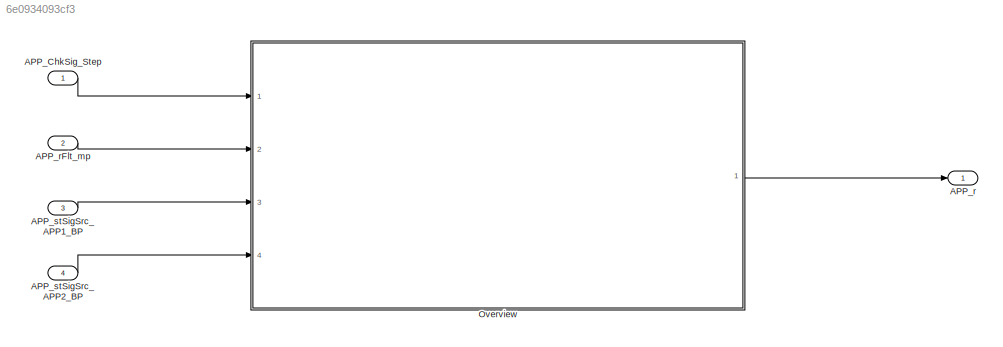
MODEL slx_6e0934093cf3
KIND model
CONFIG AbsTol = auto
CONFIG EnableMultiTasking = off
CONFIG FixedStep = 0.001
CONFIG MaxStep = auto
CONFIG MinStep = auto
CONFIG RelTol = 1e-3
CONFIG SampleTimeConstraint = Unconstrained
CONFIG SolverName = FixedStepDiscrete
CONFIG StartTime = 0.0
CONFIG StopTime = Inf
WORKSPACE source: mxarray member
WORKSPACE APP_ChkSig_DT = 10
BLOCK [Inport] APP_ChkSig_Step
  OutputFunctionCall = on
BLOCK [Outport] APP_r
  Description = Acceleration pedal sensor 1 value after fault handling
  OutDataTypeStr = Percent
  OutMax = 100
  OutMin = 0
  PortDimensions = [1 1]
  Unit = %
  VectorParamsAs1DForOutWhenUnconnected = off
BLOCK [Inport] APP_rFlt_mp
  Description = Acceleration pedal position filtered value
  OutDataTypeStr = Percent
  OutMax = 100
  OutMin = 0
  Port = 2
  PortDimensions = [1 1]
  Unit = %
BLOCK [Inport] APP_stSigSrc_APP1_BP
  Description = Sensor 1 is the reference variable, Sensor 2 value is defective
  OutDataTypeStr = boolean
  OutMax = 1
  OutMin = 0
  Port = 3
  PortDimensions = [1 1]
BLOCK [Inport] APP_stSigSrc_APP2_BP
  Description = Sensor 2 is the reference variable,Sensor1 value is defective
  OutDataTypeStr = boolean
  OutMax = 1
  OutMin = 0
  Port = 4
  PortDimensions = [1 1]
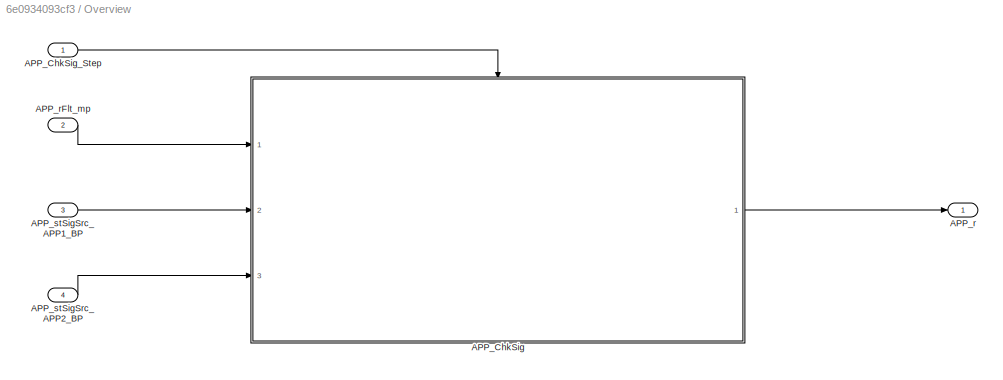
BLOCK [SubSystem] Overview
  Ports = [4, 1]
  RequestExecContextInheritance = off
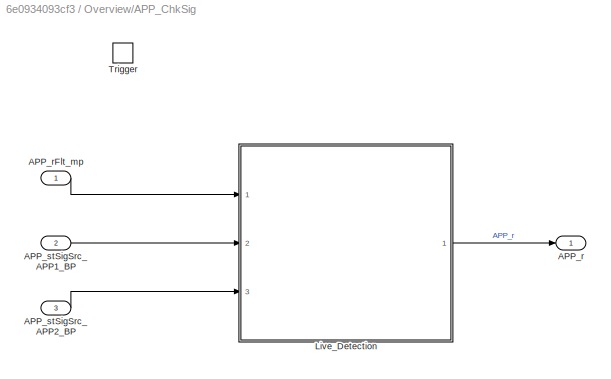
BLOCK [SubSystem] Overview/APP_ChkSig
  Ports = [3, 1, 0, 1]
  RequestExecContextInheritance = off
BLOCK [Outport] Overview/APP_ChkSig/APP_r
  Tag = %
  VectorParamsAs1DForOutWhenUnconnected = off
BLOCK [Inport] Overview/APP_ChkSig/APP_rFlt_mp
  Tag = %
BLOCK [Inport] Overview/APP_ChkSig/APP_stSigSrc_APP1_BP
  Port = 2
BLOCK [Inport] Overview/APP_ChkSig/APP_stSigSrc_APP2_BP
  Port = 3
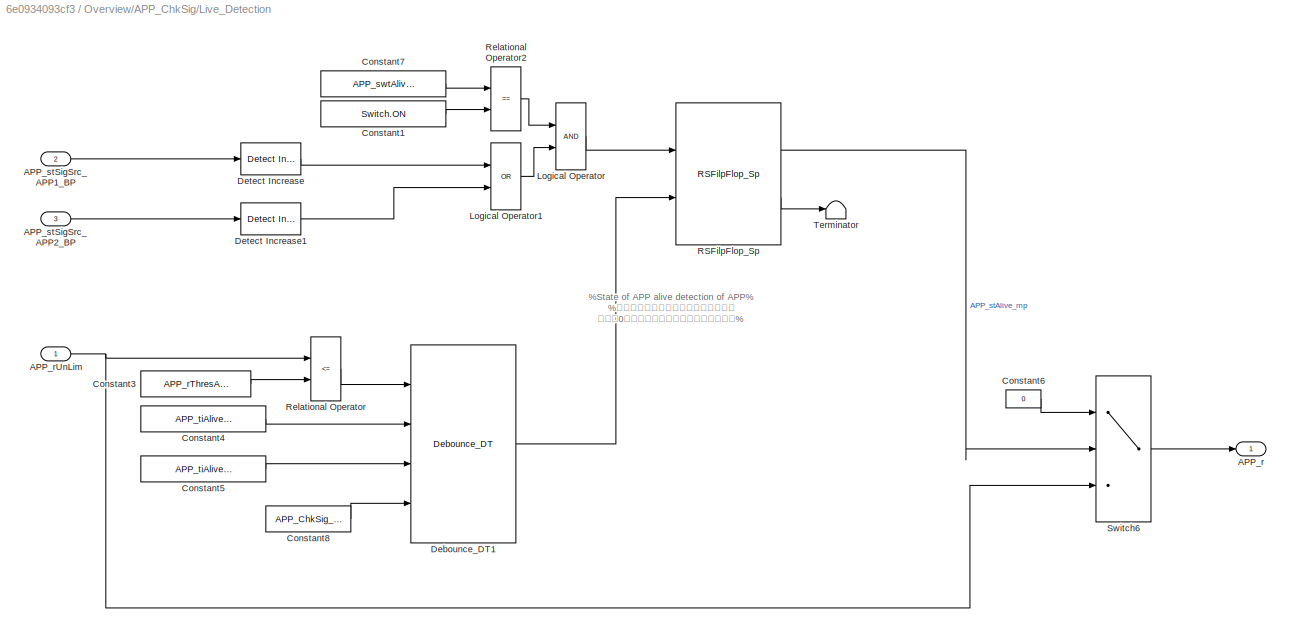
BLOCK [SubSystem] Overview/APP_ChkSig/Live_Detection
  Ports = [3, 1]
  RequestExecContextInheritance = off
BLOCK [Outport] Overview/APP_ChkSig/Live_Detection/APP_r
  VectorParamsAs1DForOutWhenUnconnected = off
BLOCK [Inport] Overview/APP_ChkSig/Live_Detection/APP_rUnLim
BLOCK [Inport] Overview/APP_ChkSig/Live_Detection/APP_stSigSrc_APP1_BP
  Port = 2
BLOCK [Inport] Overview/APP_ChkSig/Live_Detection/APP_stSigSrc_APP2_BP
  Port = 3
BLOCK [Constant] Overview/APP_ChkSig/Live_Detection/Constant1
  OutDataTypeStr = Inherit: Inherit via back propagation
  Value = Switch.ON
BLOCK [Constant] Overview/APP_ChkSig/Live_Detection/Constant3
  Value = APP_rThresAliveDet_C
BLOCK [Constant] Overview/APP_ChkSig/Live_Detection/Constant4
  Value = APP_tiAliveDebLoHi_C
BLOCK [Constant] Overview/APP_ChkSig/Live_Detection/Constant5
  Value = APP_tiAliveDebHiLo_C
BLOCK [Constant] Overview/APP_ChkSig/Live_Detection/Constant6
  OutDataTypeStr = Inherit: Inherit via back propagation
  Value = 0
BLOCK [Constant] Overview/APP_ChkSig/Live_Detection/Constant7
  Value = APP_swtAliveDetEna_C
BLOCK [Constant] Overview/APP_ChkSig/Live_Detection/Constant8
  OutDataTypeStr = Inherit: Inherit via back propagation
  Value = APP_ChkSig_DT
BLOCK [Reference] Overview/APP_ChkSig/Live_Detection/Debounce_DT1  REF=sllib/Timer and counter operators/Debounce_DT  (lib defined in slx_2b0aa6d284ff)
  Ports = [4, 1]
  SourceBlock = sllib/Timer and counter operators/Debounce_DT
  SourceProductName = sllib
  SourceType = Debounce_DT
BLOCK [Reference] Overview/APP_ChkSig/Live_Detection/Detect Increase  REF=simulink/Logic and Bit
Operations/Detect
Increase
  Ports = [1, 1]
  SourceBlock = simulink/Logic and Bit\nOperations/Detect\nIncrease
  SourceProductBaseCode = SL
  SourceType = Detect Increase
BLOCK [Reference] Overview/APP_ChkSig/Live_Detection/Detect Increase1  REF=simulink/Logic and Bit
Operations/Detect
Increase
  Ports = [1, 1]
  SourceBlock = simulink/Logic and Bit\nOperations/Detect\nIncrease
  SourceProductBaseCode = SL
  SourceType = Detect Increase
BLOCK [Logic] Overview/APP_ChkSig/Live_Detection/Logical Operator
  OutDataTypeStr = boolean
  Ports = [2, 1]
BLOCK [Logic] Overview/APP_ChkSig/Live_Detection/Logical Operator1
  Operator = OR
  OutDataTypeStr = boolean
  Ports = [2, 1]
BLOCK [Reference] Overview/APP_ChkSig/Live_Detection/RSFilpFlop_Sp  REF=sllib/Logical symbols/RSFilpFlop_Sp  (lib defined in slx_2b0aa6d284ff)
  AttributesFormatString = State Initial=%<InitialCondition>
  Ports = [2, 2]
  SourceBlock = sllib/Logical symbols/RSFilpFlop_Sp
  SourceProductName = sllib
  SourceType = RSFlipFlop_Sp
BLOCK [RelationalOperator] Overview/APP_ChkSig/Live_Detection/Relational Operator
  Operator = <=
  OutDataTypeStr = boolean
  Ports = [2, 1]
BLOCK [RelationalOperator] Overview/APP_ChkSig/Live_Detection/Relational Operator2
  Operator = ==
  OutDataTypeStr = boolean
  Ports = [2, 1]
BLOCK [Switch] Overview/APP_ChkSig/Live_Detection/Switch6
  Criteria = u2 ~= 0
  SaturateOnIntegerOverflow = off
BLOCK [Terminator] Overview/APP_ChkSig/Live_Detection/Terminator
BLOCK [TriggerPort] Overview/APP_ChkSig/Trigger
  PortDimensions = 1
  Ports = []
  StatesWhenEnabling = held
  TriggerType = function-call
  VariantControl = Variant
BLOCK [Inport] Overview/APP_ChkSig_Step
BLOCK [Outport] Overview/APP_r
  VectorParamsAs1DForOutWhenUnconnected = off
BLOCK [Inport] Overview/APP_rFlt_mp
  Port = 2
BLOCK [Inport] Overview/APP_stSigSrc_APP1_BP
  Port = 3
BLOCK [Inport] Overview/APP_stSigSrc_APP2_BP
  Port = 4
ANNOTATION Overview/APP_ChkSig/Live_Detection: %State of APP alive detection of APP% %当踏板信号只由一路信号组成时，油门 输出为0，直到油门回到怠速位置，实现安全%
LINE APP_ChkSig_Step:1 -> Overview:1
LINE APP_rFlt_mp:1 -> Overview:2
LINE APP_stSigSrc_APP1_BP:1 -> Overview:3
LINE APP_stSigSrc_APP2_BP:1 -> Overview:4
LINE Overview/APP_ChkSig/APP_rFlt_mp:1 -> Overview/APP_ChkSig/Live_Detection:1
LINE Overview/APP_ChkSig/APP_stSigSrc_APP1_BP:1 -> Overview/APP_ChkSig/Live_Detection:2
LINE Overview/APP_ChkSig/APP_stSigSrc_APP2_BP:1 -> Overview/APP_ChkSig/Live_Detection:3
NET Overview/APP_ChkSig/Live_Detection/APP_rUnLim:1 -> Overview/APP_ChkSig/Live_Detection/Relational Operator:1, Overview/APP_ChkSig/Live_Detection/Switch6:3
LINE Overview/APP_ChkSig/Live_Detection/APP_stSigSrc_APP1_BP:1 -> Overview/APP_ChkSig/Live_Detection/Detect Increase:1
LINE Overview/APP_ChkSig/Live_Detection/APP_stSigSrc_APP2_BP:1 -> Overview/APP_ChkSig/Live_Detection/Detect Increase1:1
LINE Overview/APP_ChkSig/Live_Detection/Constant1:1 -> Overview/APP_ChkSig/Live_Detection/Relational Operator2:2
LINE Overview/APP_ChkSig/Live_Detection/Constant3:1 -> Overview/APP_ChkSig/Live_Detection/Relational Operator:2
LINE Overview/APP_ChkSig/Live_Detection/Constant4:1 -> Overview/APP_ChkSig/Live_Detection/Debounce_DT1:2
LINE Overview/APP_ChkSig/Live_Detection/Constant5:1 -> Overview/APP_ChkSig/Live_Detection/Debounce_DT1:3
LINE Overview/APP_ChkSig/Live_Detection/Constant6:1 -> Overview/APP_ChkSig/Live_Detection/Switch6:1
LINE Overview/APP_ChkSig/Live_Detection/Constant7:1 -> Overview/APP_ChkSig/Live_Detection/Relational Operator2:1
LINE Overview/APP_ChkSig/Live_Detection/Constant8:1 -> Overview/APP_ChkSig/Live_Detection/Debounce_DT1:4
LINE Overview/APP_ChkSig/Live_Detection/Debounce_DT1:1 -> Overview/APP_ChkSig/Live_Detection/RSFilpFlop_Sp:2
LINE Overview/APP_ChkSig/Live_Detection/Detect Increase1:1 -> Overview/APP_ChkSig/Live_Detection/Logical Operator1:2
LINE Overview/APP_ChkSig/Live_Detection/Detect Increase:1 -> Overview/APP_ChkSig/Live_Detection/Logical Operator1:1
LINE Overview/APP_ChkSig/Live_Detection/Logical Operator1:1 -> Overview/APP_ChkSig/Live_Detection/Logical Operator:2
LINE Overview/APP_ChkSig/Live_Detection/Logical Operator:1 -> Overview/APP_ChkSig/Live_Detection/RSFilpFlop_Sp:1
LINE Overview/APP_ChkSig/Live_Detection/RSFilpFlop_Sp:1 -> Overview/APP_ChkSig/Live_Detection/Switch6:2
LINE Overview/APP_ChkSig/Live_Detection/RSFilpFlop_Sp:2 -> Overview/APP_ChkSig/Live_Detection/Terminator:1
LINE Overview/APP_ChkSig/Live_Detection/Relational Operator2:1 -> Overview/APP_ChkSig/Live_Detection/Logical Operator:1
LINE Overview/APP_ChkSig/Live_Detection/Relational Operator:1 -> Overview/APP_ChkSig/Live_Detection/Debounce_DT1:1
LINE Overview/APP_ChkSig/Live_Detection/Switch6:1 -> Overview/APP_ChkSig/Live_Detection/APP_r:1
LINE Overview/APP_ChkSig/Live_Detection:1 -> Overview/APP_ChkSig/APP_r:1
LINE Overview/APP_ChkSig:1 -> Overview/APP_r:1
LINE Overview/APP_ChkSig_Step:1 -> Overview/APP_ChkSig:trigger
LINE Overview/APP_rFlt_mp:1 -> Overview/APP_ChkSig:1
LINE Overview/APP_stSigSrc_APP1_BP:1 -> Overview/APP_ChkSig:2
LINE Overview/APP_stSigSrc_APP2_BP:1 -> Overview/APP_ChkSig:3
LINE Overview:1 -> APP_r:1
note: NET lines group one-source signal fan-out (src -> all destinations, sorted); 1:1 wires keep LINE
